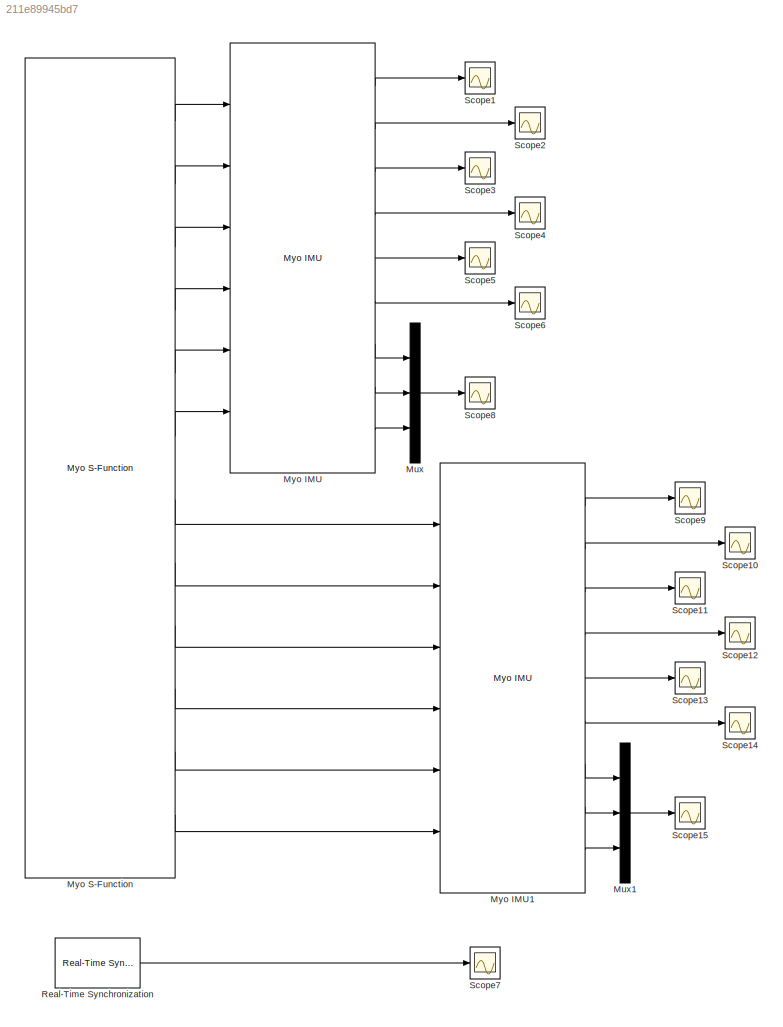
MODEL slx_211e89945bd7
KIND model
CONFIG AbsTol = auto
CONFIG EnableMultiTasking = on
CONFIG FixedStep = 0.02
CONFIG MaxStep = auto
CONFIG MinStep = auto
CONFIG RelTol = 1e-3
CONFIG SampleTimeConstraint = Unconstrained
CONFIG Solver = ode1
CONFIG SolverName = ode1
CONFIG StartTime = 0.0
CONFIG StopTime = inf
BLOCK [Mux] Mux
  DisplayOption = bar
  Inputs = 3
  Ports = [3, 1]
BLOCK [Mux] Mux1
  DisplayOption = bar
  Inputs = 3
  Ports = [3, 1]
BLOCK [Reference] Myo IMU  REF=myo_lib/Myo IMU  (lib defined in slx_a57fffc76f72)
  Ports = [6, 9]
  SourceBlock = myo_lib/Myo IMU
  SourceType = SubSystem
BLOCK [Reference] Myo IMU1  REF=myo_lib/Myo IMU  (lib defined in slx_a57fffc76f72)
  Ports = [6, 9]
  SourceBlock = myo_lib/Myo IMU
  SourceType = SubSystem
BLOCK [Reference] Myo S-Function  REF=myo_lib/Myo S-Function  (lib defined in slx_a57fffc76f72)
  Ports = [0, 12]
  SourceBlock = myo_lib/Myo S-Function
BLOCK [Reference] Real-Time Synchronization  REF=sldrtlib/Real-Time
Synchronization
  Ports = [0, 1]
  SourceBlock = sldrtlib/Real-Time\nSynchronization
  SourceProductBaseCode = WT
  SourceProductName = Simulink Desktop Real-Time
  SourceType = Simulink Desktop Real-Time Synchronization
BLOCK [Scope] Scope1
  Floating = off
  NumInputPorts = 1
  Ports = [1]
  ScopeSpecificationString = C++SS(StrPVP('Location','[1225, 754, 1742, 986]'),StrPVP('Open','off'),StrPVP('ZoomMode','yonly'),MxPVP('AxesTitles',54,'struct(''axes1'',''%<SignalLabel>'')'),MxPVP('ScopeGraphics',57,'struct(''FigureColor'',''[0.5 0.5 0.5]'',''AxesColor'',''[0 0 0]'',''AxesTickColor'',''[1 1 1]'',''LineColors'',''[1 1 0;1 0 1;0 1 1;1 0 0;0 1 0;0 0 1]'',''LineStyles'',''-|-|-|-|-|-'',''LineWidths'',''[0.5 0.5 0.5...<+336ch>
BLOCK [Scope] Scope10
  Floating = off
  NumInputPorts = 1
  Ports = [1]
  ScopeSpecificationString = C++SS(StrPVP('Location','[1225, 754, 1742, 986]'),StrPVP('Open','off'),StrPVP('ZoomMode','yonly'),MxPVP('AxesTitles',54,'struct(''axes1'',''%<SignalLabel>'')'),MxPVP('ScopeGraphics',57,'struct(''FigureColor'',''[0.5 0.5 0.5]'',''AxesColor'',''[0 0 0]'',''AxesTickColor'',''[1 1 1]'',''LineColors'',''[1 1 0;1 0 1;0 1 1;1 0 0;0 1 0;0 0 1]'',''LineStyles'',''-|-|-|-|-|-'',''LineWidths'',''[0.5 0.5 0.5...<+368ch>  <repeated x9 — deduplicated; at blocks: Scope10, Scope11, Scope2, Scope3, Scope4, Scope5, Scope6, Scope7, Scope8>
BLOCK [Scope] Scope11
  Floating = off
  NumInputPorts = 1
  Ports = [1]
BLOCK [Scope] Scope12
  Floating = off
  NumInputPorts = 1
  Ports = [1]
  ScopeSpecificationString = C++SS(StrPVP('Location','[1225, 754, 1742, 986]'),StrPVP('Open','off'),StrPVP('ZoomMode','yonly'),MxPVP('AxesTitles',54,'struct(''axes1'',''%<SignalLabel>'')'),MxPVP('ScopeGraphics',57,'struct(''FigureColor'',''[0.5 0.5 0.5]'',''AxesColor'',''[0 0 0]'',''AxesTickColor'',''[1 1 1]'',''LineColors'',''[1 1 0;1 0 1;0 1 1;1 0 0;0 1 0;0 0 1]'',''LineStyles'',''-|-|-|-|-|-'',''LineWidths'',''[0.5 0.5 0.5...<+369ch>  <repeated x5 — deduplicated; at blocks: Scope12, Scope13, Scope14, Scope15, Scope9>
BLOCK [Scope] Scope13
  Floating = off
  NumInputPorts = 1
  Ports = [1]
BLOCK [Scope] Scope14
  Floating = off
  NumInputPorts = 1
  Ports = [1]
BLOCK [Scope] Scope15
  Floating = off
  NumInputPorts = 1
  Ports = [1]
BLOCK [Scope] Scope2
  Floating = off
  NumInputPorts = 1
  Ports = [1]
BLOCK [Scope] Scope3
  Floating = off
  NumInputPorts = 1
  Ports = [1]
BLOCK [Scope] Scope4
  Floating = off
  NumInputPorts = 1
  Ports = [1]
BLOCK [Scope] Scope5
  Floating = off
  NumInputPorts = 1
  Ports = [1]
BLOCK [Scope] Scope6
  Floating = off
  NumInputPorts = 1
  Ports = [1]
BLOCK [Scope] Scope7
  Floating = off
  NumInputPorts = 1
  Ports = [1]
BLOCK [Scope] Scope8
  Floating = off
  NumInputPorts = 1
  Ports = [1]
BLOCK [Scope] Scope9
  Floating = off
  NumInputPorts = 1
  Ports = [1]
LINE Mux1:1 -> Scope15:1
LINE Mux:1 -> Scope8:1
LINE Myo IMU1:1 -> Scope9:1
LINE Myo IMU1:2 -> Scope10:1
LINE Myo IMU1:3 -> Scope11:1
LINE Myo IMU1:4 -> Scope12:1
LINE Myo IMU1:5 -> Scope13:1
LINE Myo IMU1:6 -> Scope14:1
LINE Myo IMU1:7 -> Mux1:1
LINE Myo IMU1:8 -> Mux1:2
LINE Myo IMU1:9 -> Mux1:3
LINE Myo IMU:1 -> Scope1:1
LINE Myo IMU:2 -> Scope2:1
LINE Myo IMU:3 -> Scope3:1
LINE Myo IMU:4 -> Scope4:1
LINE Myo IMU:5 -> Scope5:1
LINE Myo IMU:6 -> Scope6:1
LINE Myo IMU:7 -> Mux:1
LINE Myo IMU:8 -> Mux:2
LINE Myo IMU:9 -> Mux:3
LINE Myo S-Function:1 -> Myo IMU:1
LINE Myo S-Function:10 -> Myo IMU1:4
LINE Myo S-Function:11 -> Myo IMU1:5
LINE Myo S-Function:12 -> Myo IMU1:6
LINE Myo S-Function:2 -> Myo IMU:2
LINE Myo S-Function:3 -> Myo IMU:3
LINE Myo S-Function:4 -> Myo IMU:4
LINE Myo S-Function:5 -> Myo IMU:5
LINE Myo S-Function:6 -> Myo IMU:6
LINE Myo S-Function:7 -> Myo IMU1:1
LINE Myo S-Function:8 -> Myo IMU1:2
LINE Myo S-Function:9 -> Myo IMU1:3
LINE Real-Time Synchronization:1 -> Scope7:1
